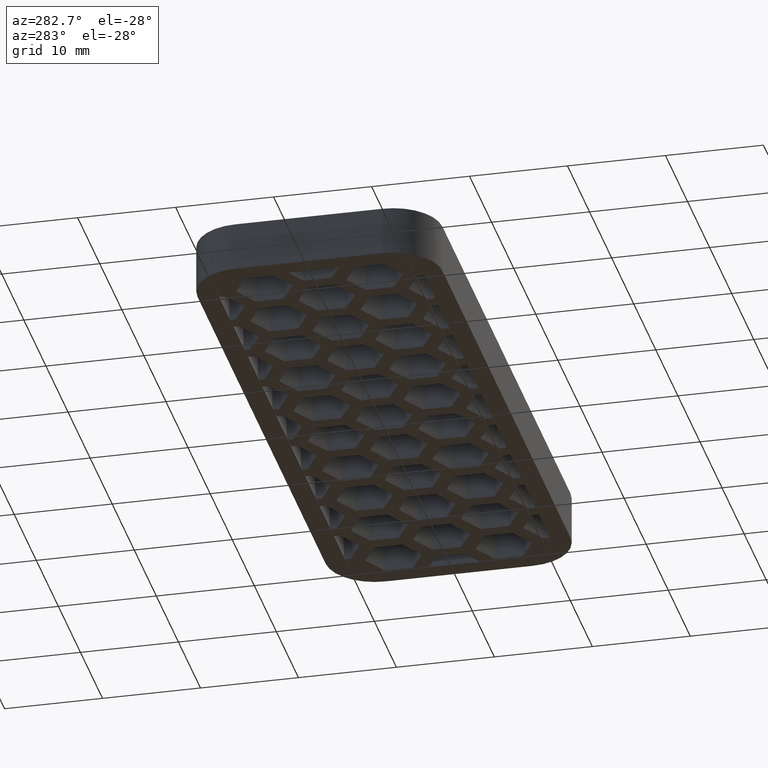
[diagram: clean part render]
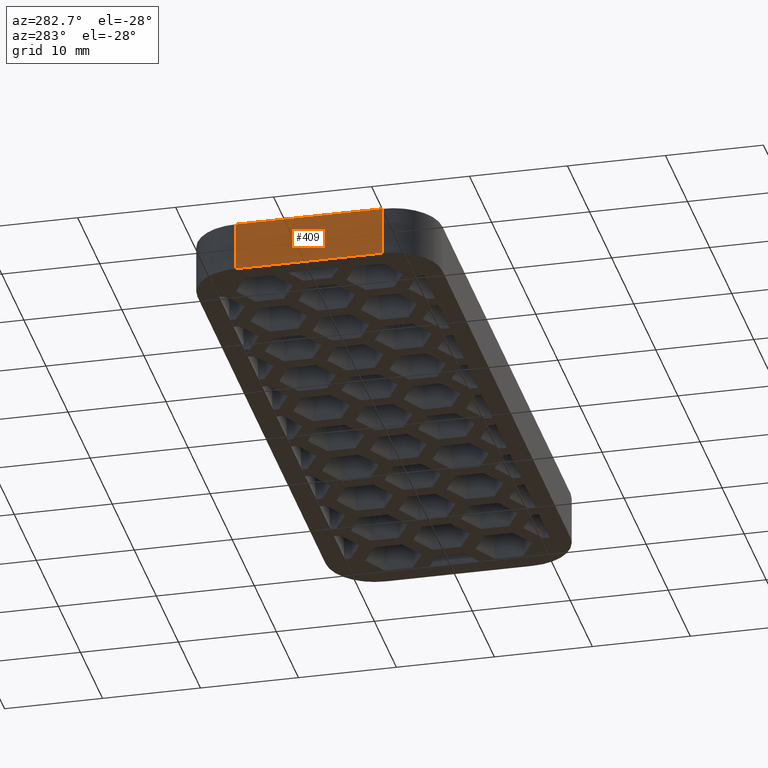
[diagram: same view with one face highlighted and labeled with its STEP entity id]
A machine part, auxiliary view. The second image highlights one B-rep face of the part: STEP entity #409.
In plain terms, the highlighted planar face has unit normal (-1, -0, -0).
Its self-contained STEP definition (entity closure, byte-faithful):
#409 = ADVANCED_FACE( '', ( #1170 ), #1171, .T. );
#1170 = FACE_OUTER_BOUND( '', #1964, .T. );
#1171 = PLANE( '', #1965 );
#1964 = EDGE_LOOP( '', ( #4754, #4755, #4756, #4757 ) );
#1965 = AXIS2_PLACEMENT_3D( '', #4758, #4759, #4760 );
#4754 = ORIENTED_EDGE( '', *, *, #5293, .F. );
#4755 = ORIENTED_EDGE( '', *, *, #5896, .F. );
#4756 = ORIENTED_EDGE( '', *, *, #5008, .T. );
#4757 = ORIENTED_EDGE( '', *, *, #5895, .T. );
#4758 = CARTESIAN_POINT( '', ( -34.0000000000000, -7.50000000000000, 92.3899068193015 ) );
#4759 = DIRECTION( '', ( -1.00000000000000, -1.08450497945135E-031, -1.60751816480226E-016 ) );
#4760 = DIRECTION( '', ( -7.92267532763572E-032, 1.00000000000000, -1.81794180051289E-016 ) );
#5008 = EDGE_CURVE( '', #5953, #5951, #5954, .T. );
#5293 = EDGE_CURVE( '', #6514, #6516, #6517, .T. );
#5895 = EDGE_CURVE( '', #5951, #6516, #7443, .T. );
#5896 = EDGE_CURVE( '', #5953, #6514, #7444, .T. );
#5951 = VERTEX_POINT( '', #7512 );
#5953 = VERTEX_POINT( '', #7514 );
#5954 = LINE( '', #7515, #7516 );
#6514 = VERTEX_POINT( '', #8352 );
#6516 = VERTEX_POINT( '', #8354 );
#6517 = LINE( '', #8355, #8356 );
#7443 = LINE( '', #9878, #9879 );
#7444 = LINE( '', #9880, #9881 );
#7512 = CARTESIAN_POINT( '', ( -34.0000000000000, 7.50000000000001, 5.00000000000000 ) );
#7514 = CARTESIAN_POINT( '', ( -34.0000000000000, -7.50000000000003, 5.00000000000000 ) );
#7515 = CARTESIAN_POINT( '', ( -34.0000000000000, 3.06151588455586E-016, 5.00000000000000 ) );
#7516 = VECTOR( '', #9950, 1000.00000000000 );
#8352 = CARTESIAN_POINT( '', ( -34.0000000000000, -7.50000000000003, 4.59227382683394E-016 ) );
#8354 = CARTESIAN_POINT( '', ( -34.0000000000000, 7.50000000000001, -1.43370151904978E-014 ) );
#8355 = CARTESIAN_POINT( '', ( -34.0000000000000, -7.93791285878643E-030, 4.86040926147911E-046 ) );
#8356 = VECTOR( '', #10251, 1000.00000000000 );
#9878 = CARTESIAN_POINT( '', ( -34.0000000000000, 7.50000000000001, 92.3899068193015 ) );
#9879 = VECTOR( '', #10863, 1000.00000000000 );
#9880 = CARTESIAN_POINT( '', ( -34.0000000000000, -7.50000000000000, 92.3899068193015 ) );
#9881 = VECTOR( '', #10864, 1000.00000000000 );
#9950 = DIRECTION( '', ( -9.86076131526265E-032, 1.00000000000000, -6.12303176911189E-017 ) );
#10251 = DIRECTION( '', ( -9.86076131526265E-032, 1.00000000000000, -6.12303176911189E-017 ) );
#10863 = DIRECTION( '', ( 1.60751816480226E-016, -1.81794180051289E-016, -1.00000000000000 ) );
#10864 = DIRECTION( '', ( 1.60751816480226E-016, -1.81794180051289E-016, -1.00000000000000 ) );